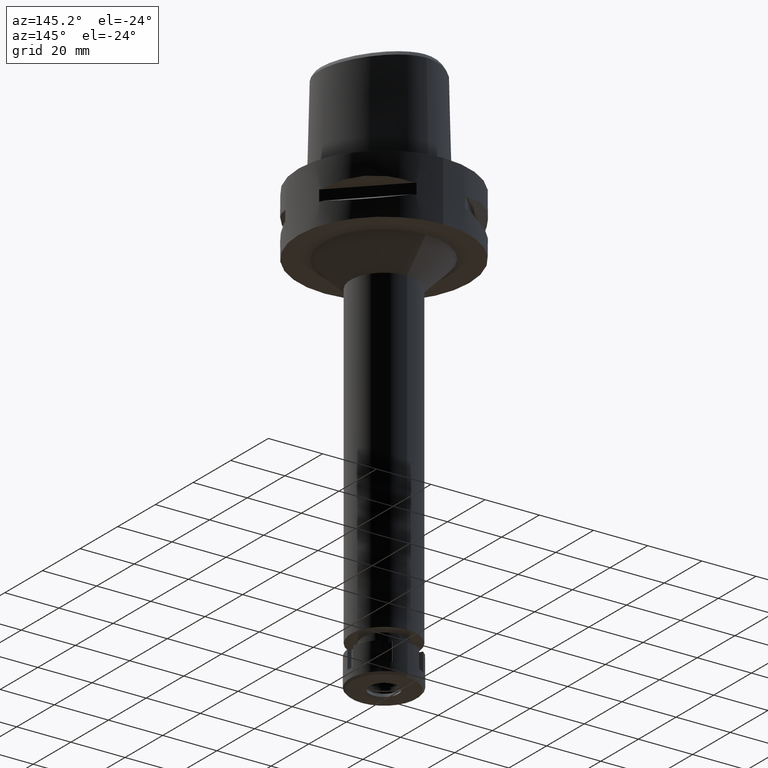
[diagram: clean part render]
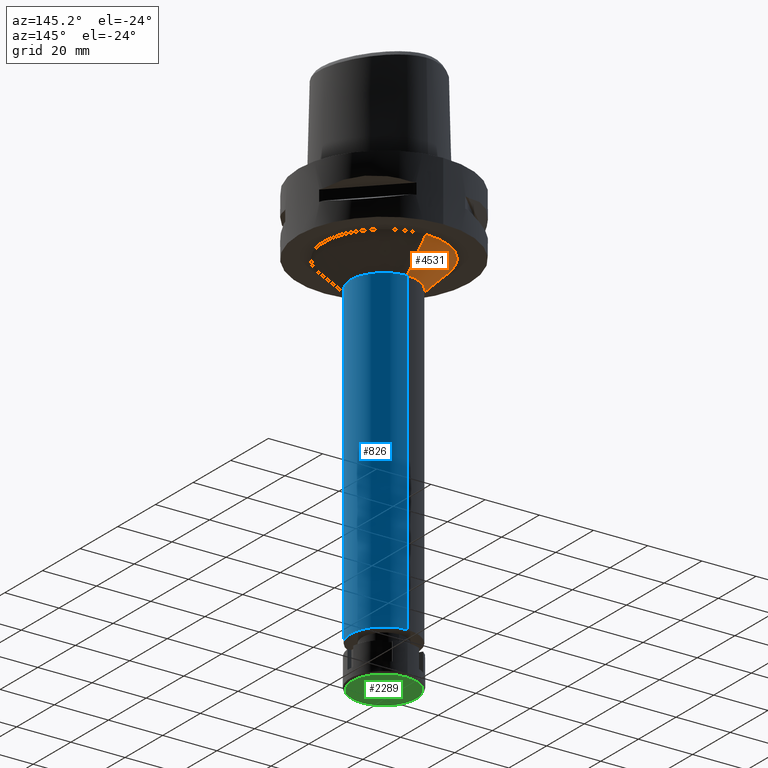
[diagram: same view with three faces highlighted in distinct colors, each labeled with its STEP entity id]
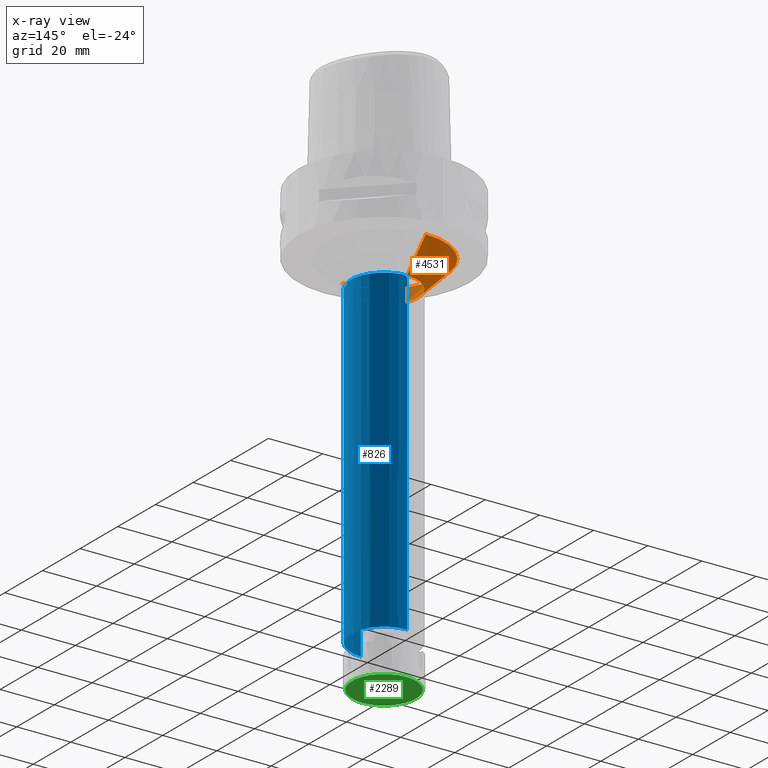
[diagram: x-ray of the same camera — body ghosted, the three highlighted faces saturated]
A machine part, auxiliary view with three faces highlighted in distinct colors.
The next image is the same camera in x-ray (body ghosted, the three faces saturated) — at least one of them is partly hidden behind the body in this view.
Their STEP definitions:

[orange] entity #4531 — the highlighted conical surface has half-angle 45 deg.
#41 = DIRECTION ( 'NONE',  ( 0.0000000000000000000, 0.0000000000000000000, -1.000000000000000000 ) ) ;
#150 = CARTESIAN_POINT ( 'NONE',  ( 0.0000000000000000000, -22.25000000000000000, -22.00000000000000000 ) ) ;
#384 = ORIENTED_EDGE ( 'NONE', *, *, #3395, .F. ) ;
#445 = CARTESIAN_POINT ( 'NONE',  ( 0.0000000000000000000, 0.0000000000000000000, -27.00000000000000000 ) ) ;
#996 = LINE ( 'NONE', #3632, #2686 ) ;
#1061 = CIRCLE ( 'NONE', #3216, 12.25000000000000000 ) ;
#1193 = EDGE_LOOP ( 'NONE', ( #384, #3800, #3208, #4782 ) ) ;
#1422 = CONICAL_SURFACE ( 'NONE', #4755, 17.25000000000000000, 0.7853981633972997312 ) ;
#1504 = CARTESIAN_POINT ( 'NONE',  ( 0.0000000000000000000, -12.25000000000000000, -32.00000000000000000 ) ) ;
#1718 = DIRECTION ( 'NONE',  ( 0.0000000000000000000, -1.000000000000000000, 0.0000000000000000000 ) ) ;
#1882 = VERTEX_POINT ( 'NONE', #2635 ) ;
#1907 = EDGE_CURVE ( 'NONE', #1882, #4314, #2113, .T. ) ;
#2111 = EDGE_CURVE ( 'NONE', #1882, #2125, #3199, .T. ) ;
#2113 = CIRCLE ( 'NONE', #3296, 22.25000000000000000 ) ;
#2125 = VERTEX_POINT ( 'NONE', #1504 ) ;
#2154 = FACE_OUTER_BOUND ( 'NONE', #1193, .T. ) ;
#2263 = DIRECTION ( 'NONE',  ( 0.0000000000000000000, 0.7071067811865474617, -0.7071067811865474617 ) ) ;
#2444 = VERTEX_POINT ( 'NONE', #2604 ) ;
#2604 = CARTESIAN_POINT ( 'NONE',  ( 0.0000000000000000000, 12.25000000000000000, -32.00000000000000000 ) ) ;
#2635 = CARTESIAN_POINT ( 'NONE',  ( 0.0000000000000000000, -22.25000000000000000, -22.00000000000000000 ) ) ;
#2686 = VECTOR ( 'NONE', #5241, 1000.000000000000114 ) ;
#3025 = CARTESIAN_POINT ( 'NONE',  ( 0.0000000000000000000, 0.0000000000000000000, -32.00000000000000000 ) ) ;
#3199 = LINE ( 'NONE', #150, #3658 ) ;
#3208 = ORIENTED_EDGE ( 'NONE', *, *, #1907, .T. ) ;
#3216 = AXIS2_PLACEMENT_3D ( 'NONE', #3025, #3423, #1718 ) ;
#3296 = AXIS2_PLACEMENT_3D ( 'NONE', #3538, #41, #4310 ) ;
#3395 = EDGE_CURVE ( 'NONE', #2125, #2444, #1061, .T. ) ;
#3423 = DIRECTION ( 'NONE',  ( 0.0000000000000000000, 0.0000000000000000000, -1.000000000000000000 ) ) ;
#3538 = CARTESIAN_POINT ( 'NONE',  ( 0.0000000000000000000, 0.0000000000000000000, -22.00000000000000000 ) ) ;
#3632 = CARTESIAN_POINT ( 'NONE',  ( 0.0000000000000000000, 22.25000000000000000, -22.00000000000000000 ) ) ;
#3658 = VECTOR ( 'NONE', #2263, 1000.000000000000114 ) ;
#3800 = ORIENTED_EDGE ( 'NONE', *, *, #2111, .F. ) ;
#4255 = DIRECTION ( 'NONE',  ( 0.0000000000000000000, 0.0000000000000000000, 1.000000000000000000 ) ) ;
#4263 = EDGE_CURVE ( 'NONE', #4314, #2444, #996, .T. ) ;
#4310 = DIRECTION ( 'NONE',  ( 0.0000000000000000000, -1.000000000000000000, 0.0000000000000000000 ) ) ;
#4314 = VERTEX_POINT ( 'NONE', #4535 ) ;
#4531 = ADVANCED_FACE ( 'NONE', ( #2154 ), #1422, .T. ) ;
#4535 = CARTESIAN_POINT ( 'NONE',  ( 0.0000000000000000000, 22.25000000000000000, -22.00000000000000000 ) ) ;
#4755 = AXIS2_PLACEMENT_3D ( 'NONE', #445, #4255, #5175 ) ;
#4782 = ORIENTED_EDGE ( 'NONE', *, *, #4263, .T. ) ;
#5175 = DIRECTION ( 'NONE',  ( 0.0000000000000000000, 1.000000000000000000, 0.0000000000000000000 ) ) ;
#5241 = DIRECTION ( 'NONE',  ( 0.0000000000000000000, -0.7071067811865474617, -0.7071067811865474617 ) ) ;

[blue] entity #826 — the highlighted cylindrical surface (partial cylindrical patch) has radius 12.25 mm, axis along (0, 0, -1).
#13 = DIRECTION ( 'NONE',  ( 0.0000000000000000000, 0.0000000000000000000, -1.000000000000000000 ) ) ;
#321 = AXIS2_PLACEMENT_3D ( 'NONE', #5165, #13, #1365 ) ;
#465 = CARTESIAN_POINT ( 'NONE',  ( 0.0000000000000000000, -12.25000000000000000, -32.00000000000000000 ) ) ;
#470 = DIRECTION ( 'NONE',  ( 0.0000000000000000000, -1.000000000000000000, 0.0000000000000000000 ) ) ;
#542 = EDGE_CURVE ( 'NONE', #2125, #3256, #3090, .T. ) ;
#746 = EDGE_CURVE ( 'NONE', #2444, #2125, #4103, .T. ) ;
#783 = CARTESIAN_POINT ( 'NONE',  ( 0.0000000000000000000, 0.0000000000000000000, -32.00000000000000000 ) ) ;
#826 = ADVANCED_FACE ( 'NONE', ( #1283 ), #3961, .T. ) ;
#873 = DIRECTION ( 'NONE',  ( 0.0000000000000000000, 0.0000000000000000000, -1.000000000000000000 ) ) ;
#927 = CARTESIAN_POINT ( 'NONE',  ( 0.0000000000000000000, 1.322006219679999766E-14, -149.5000000000000000 ) ) ;
#1111 = ORIENTED_EDGE ( 'NONE', *, *, #746, .T. ) ;
#1150 = CARTESIAN_POINT ( 'NONE',  ( 0.0000000000000000000, -12.25000000000000000, -149.5000000000000000 ) ) ;
#1207 = DIRECTION ( 'NONE',  ( 0.0000000000000000000, 0.0000000000000000000, -1.000000000000000000 ) ) ;
#1275 = ORIENTED_EDGE ( 'NONE', *, *, #2743, .F. ) ;
#1283 = FACE_OUTER_BOUND ( 'NONE', #4210, .T. ) ;
#1365 = DIRECTION ( 'NONE',  ( 0.0000000000000000000, -1.000000000000000000, 0.0000000000000000000 ) ) ;
#1504 = CARTESIAN_POINT ( 'NONE',  ( 0.0000000000000000000, -12.25000000000000000, -32.00000000000000000 ) ) ;
#1539 = ORIENTED_EDGE ( 'NONE', *, *, #542, .T. ) ;
#1601 = EDGE_CURVE ( 'NONE', #3256, #2198, #5540, .T. ) ;
#1755 = DIRECTION ( 'NONE',  ( 0.0000000000000000000, 0.0000000000000000000, 1.000000000000000000 ) ) ;
#2125 = VERTEX_POINT ( 'NONE', #1504 ) ;
#2198 = VERTEX_POINT ( 'NONE', #2322 ) ;
#2322 = CARTESIAN_POINT ( 'NONE',  ( 0.0000000000000000000, 12.25000000000000000, -149.5000000000000000 ) ) ;
#2444 = VERTEX_POINT ( 'NONE', #2604 ) ;
#2604 = CARTESIAN_POINT ( 'NONE',  ( 0.0000000000000000000, 12.25000000000000000, -32.00000000000000000 ) ) ;
#2743 = EDGE_CURVE ( 'NONE', #2444, #2198, #4721, .T. ) ;
#3090 = LINE ( 'NONE', #465, #4372 ) ;
#3256 = VERTEX_POINT ( 'NONE', #1150 ) ;
#3768 = DIRECTION ( 'NONE',  ( 0.0000000000000000000, 1.000000000000000000, 0.0000000000000000000 ) ) ;
#3834 = AXIS2_PLACEMENT_3D ( 'NONE', #783, #1207, #3768 ) ;
#3961 = CYLINDRICAL_SURFACE ( 'NONE', #321, 12.25000000000000000 ) ;
#4103 = CIRCLE ( 'NONE', #3834, 12.25000000000000000 ) ;
#4210 = EDGE_LOOP ( 'NONE', ( #1111, #1539, #4228, #1275 ) ) ;
#4228 = ORIENTED_EDGE ( 'NONE', *, *, #1601, .T. ) ;
#4253 = CARTESIAN_POINT ( 'NONE',  ( 0.0000000000000000000, 12.25000000000000000, -32.00000000000000000 ) ) ;
#4372 = VECTOR ( 'NONE', #4828, 1000.000000000000000 ) ;
#4651 = AXIS2_PLACEMENT_3D ( 'NONE', #927, #1755, #470 ) ;
#4721 = LINE ( 'NONE', #4253, #4920 ) ;
#4828 = DIRECTION ( 'NONE',  ( 0.0000000000000000000, 0.0000000000000000000, -1.000000000000000000 ) ) ;
#4920 = VECTOR ( 'NONE', #873, 1000.000000000000000 ) ;
#5165 = CARTESIAN_POINT ( 'NONE',  ( 0.0000000000000000000, 1.322006219679999766E-14, 7.950000000000000178 ) ) ;
#5540 = CIRCLE ( 'NONE', #4651, 12.25000000000000000 ) ;

[green] entity #2289 — the highlighted planar face has unit normal (0, 0, -1).
#30 = DIRECTION ( 'NONE',  ( 0.0000000000000000000, -1.000000000000000000, 0.0000000000000000000 ) ) ;
#114 = ORIENTED_EDGE ( 'NONE', *, *, #3819, .F. ) ;
#125 = CIRCLE ( 'NONE', #3279, 11.79999999999999893 ) ;
#242 = CIRCLE ( 'NONE', #3584, 5.250000000000000000 ) ;
#246 = DIRECTION ( 'NONE',  ( 0.0000000000000000000, 0.0000000000000000000, 1.000000000000000000 ) ) ;
#251 = CIRCLE ( 'NONE', #3402, 11.79999999999999893 ) ;
#257 = VERTEX_POINT ( 'NONE', #1049 ) ;
#267 = DIRECTION ( 'NONE',  ( 0.0000000000000000000, -1.000000000000000000, 0.0000000000000000000 ) ) ;
#328 = AXIS2_PLACEMENT_3D ( 'NONE', #4555, #4138, #267 ) ;
#502 = DIRECTION ( 'NONE',  ( 0.0000000000000000000, -1.000000000000000000, 0.0000000000000000000 ) ) ;
#508 = DIRECTION ( 'NONE',  ( 0.0000000000000000000, 0.0000000000000000000, -1.000000000000000000 ) ) ;
#695 = FACE_OUTER_BOUND ( 'NONE', #4701, .T. ) ;
#1049 = CARTESIAN_POINT ( 'NONE',  ( 0.0000000000000000000, -5.250000000000000000, -11.00000000000000000 ) ) ;
#1103 = CARTESIAN_POINT ( 'NONE',  ( 0.0000000000000000000, 0.0000000000000000000, -11.00000000000000000 ) ) ;
#1257 = FACE_BOUND ( 'NONE', #3462, .T. ) ;
#1787 = DIRECTION ( 'NONE',  ( 0.0000000000000000000, 0.0000000000000000000, 1.000000000000000000 ) ) ;
#1815 = VERTEX_POINT ( 'NONE', #2123 ) ;
#2042 = CIRCLE ( 'NONE', #5208, 5.250000000000000000 ) ;
#2123 = CARTESIAN_POINT ( 'NONE',  ( 0.0000000000000000000, 11.79999999999999893, -11.00000000000000000 ) ) ;
#2241 = ORIENTED_EDGE ( 'NONE', *, *, #4410, .F. ) ;
#2289 = ADVANCED_FACE ( 'NONE', ( #695, #1257 ), #5446, .T. ) ;
#2900 = VERTEX_POINT ( 'NONE', #4447 ) ;
#3132 = DIRECTION ( 'NONE',  ( 0.0000000000000000000, 1.000000000000000000, 0.0000000000000000000 ) ) ;
#3279 = AXIS2_PLACEMENT_3D ( 'NONE', #4367, #1787, #502 ) ;
#3402 = AXIS2_PLACEMENT_3D ( 'NONE', #1103, #246, #3692 ) ;
#3405 = ORIENTED_EDGE ( 'NONE', *, *, #4302, .F. ) ;
#3462 = EDGE_LOOP ( 'NONE', ( #3405, #114 ) ) ;
#3584 = AXIS2_PLACEMENT_3D ( 'NONE', #4379, #508, #30 ) ;
#3692 = DIRECTION ( 'NONE',  ( 0.0000000000000000000, 1.000000000000000000, 0.0000000000000000000 ) ) ;
#3693 = CARTESIAN_POINT ( 'NONE',  ( 0.0000000000000000000, 5.250000000000000000, -11.00000000000000000 ) ) ;
#3819 = EDGE_CURVE ( 'NONE', #257, #4141, #242, .T. ) ;
#4138 = DIRECTION ( 'NONE',  ( 0.0000000000000000000, 0.0000000000000000000, -1.000000000000000000 ) ) ;
#4141 = VERTEX_POINT ( 'NONE', #3693 ) ;
#4302 = EDGE_CURVE ( 'NONE', #4141, #257, #2042, .T. ) ;
#4367 = CARTESIAN_POINT ( 'NONE',  ( 0.0000000000000000000, 0.0000000000000000000, -11.00000000000000000 ) ) ;
#4379 = CARTESIAN_POINT ( 'NONE',  ( 0.0000000000000000000, 0.0000000000000000000, -11.00000000000000000 ) ) ;
#4410 = EDGE_CURVE ( 'NONE', #1815, #2900, #251, .T. ) ;
#4447 = CARTESIAN_POINT ( 'NONE',  ( 0.0000000000000000000, -11.79999999999999893, -11.00000000000000000 ) ) ;
#4555 = CARTESIAN_POINT ( 'NONE',  ( 0.0000000000000000000, 0.0000000000000000000, -11.00000000000000000 ) ) ;
#4701 = EDGE_LOOP ( 'NONE', ( #2241, #4708 ) ) ;
#4708 = ORIENTED_EDGE ( 'NONE', *, *, #5463, .F. ) ;
#5208 = AXIS2_PLACEMENT_3D ( 'NONE', #5297, #5267, #3132 ) ;
#5267 = DIRECTION ( 'NONE',  ( 0.0000000000000000000, 0.0000000000000000000, -1.000000000000000000 ) ) ;
#5297 = CARTESIAN_POINT ( 'NONE',  ( 0.0000000000000000000, 0.0000000000000000000, -11.00000000000000000 ) ) ;
#5446 = PLANE ( 'NONE',  #328 ) ;
#5463 = EDGE_CURVE ( 'NONE', #2900, #1815, #125, .T. ) ;